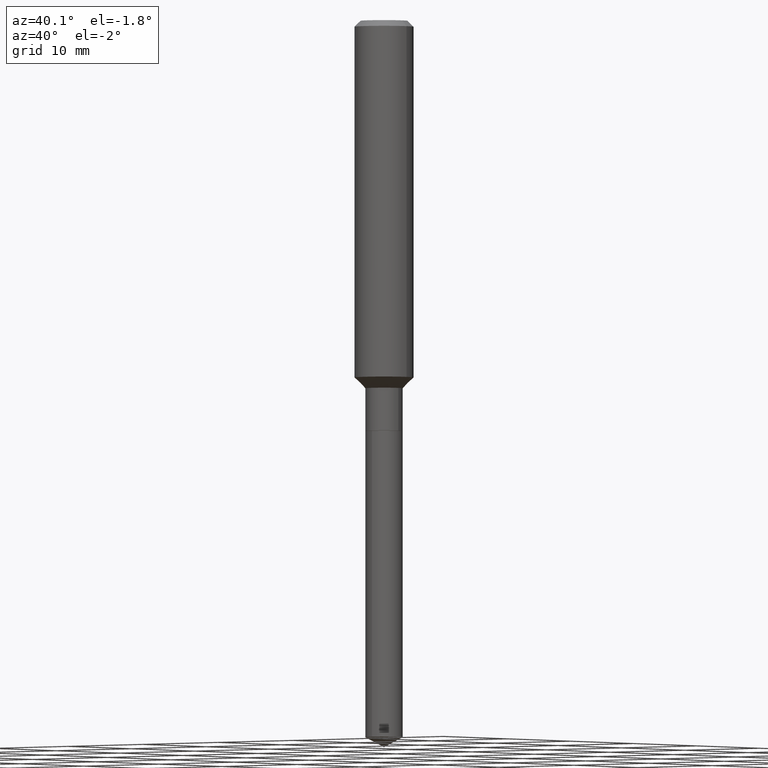
[diagram: clean part render]
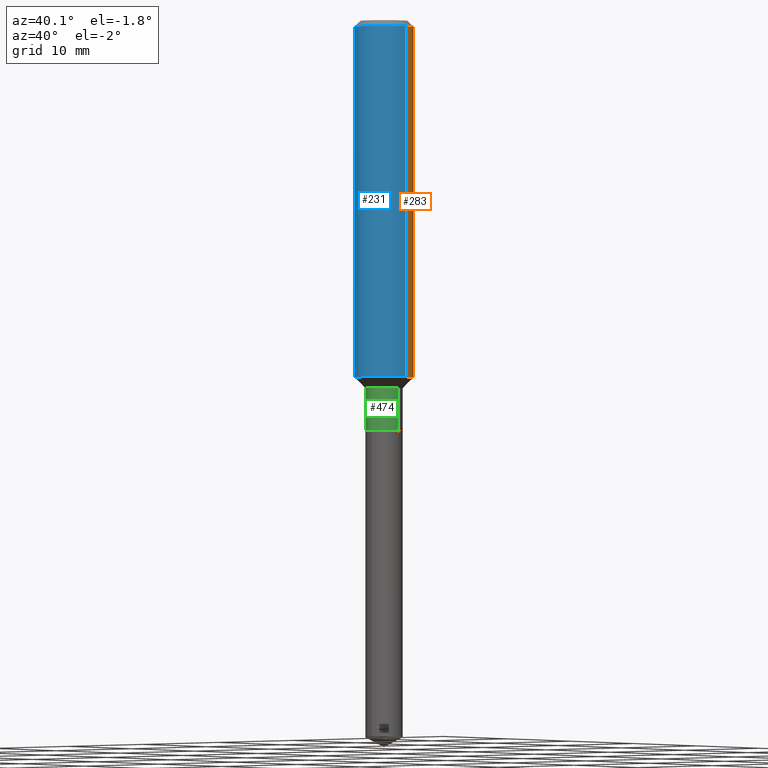
[diagram: same view with three faces highlighted in distinct colors, each labeled with its STEP entity id]
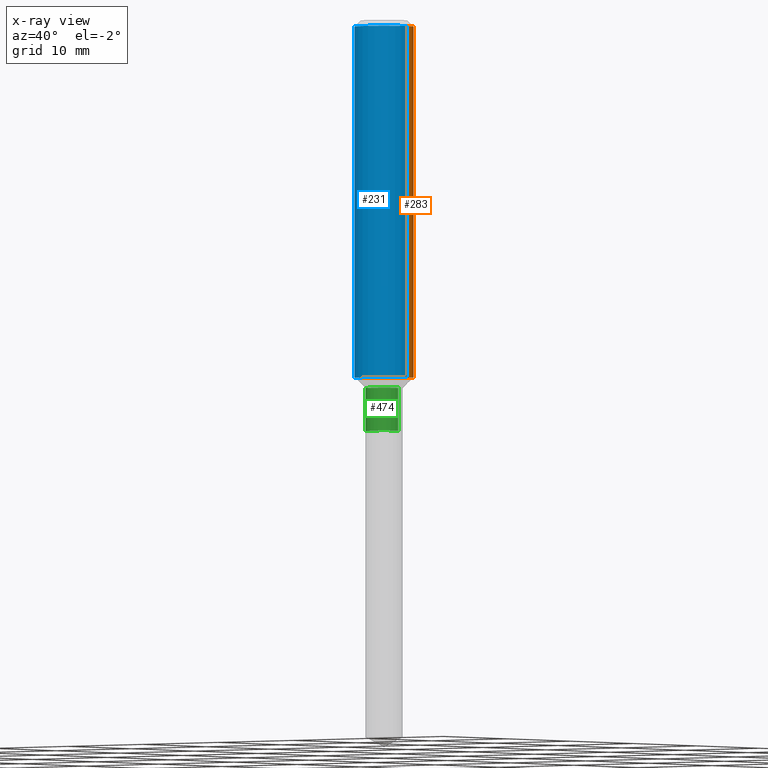
[diagram: x-ray of the same camera — body ghosted, the three highlighted faces saturated]
A machine part, auxiliary view with three faces highlighted in distinct colors.
The next image is the same camera in x-ray (body ghosted, the three faces saturated) — at least one of them is partly hidden behind the body in this view.
Their STEP definitions:

[orange] entity #283 — the highlighted cylindrical surface (edge-blend (fillet) strip) has radius 2.9997 mm, axis along (-0, 0, 1).
#2 = LINE ( 'NONE', #63, #98 ) ;
#3 = VERTEX_POINT ( 'NONE', #489 ) ;
#32 = CYLINDRICAL_SURFACE ( 'NONE', #421, 0.1181000000000000799 ) ;
#34 = CARTESIAN_POINT ( 'NONE',  ( 0.1181000000000000799, -8.246878922347486570E-16, 5.758764772215004644E-30 ) ) ;
#39 = ORIENTED_EDGE ( 'NONE', *, *, #383, .T. ) ;
#63 = CARTESIAN_POINT ( 'NONE',  ( -0.1181000000000000799, 8.391509709326788873E-16, -5.809262341591047988E-30 ) ) ;
#70 = CARTESIAN_POINT ( 'NONE',  ( 3.497998580367219776E-29, -4.994214907081235414E-15, -1.430400000000000116 ) ) ;
#84 = EDGE_CURVE ( 'NONE', #3, #368, #263, .T. ) ;
#98 = VECTOR ( 'NONE', #206, 39.37007874015748143 ) ;
#130 = EDGE_LOOP ( 'NONE', ( #286, #39, #138, #134 ) ) ;
#134 = ORIENTED_EDGE ( 'NONE', *, *, #306, .F. ) ;
#138 = ORIENTED_EDGE ( 'NONE', *, *, #364, .F. ) ;
#163 = DIRECTION ( 'NONE',  ( -2.445468806185136597E-29, 3.491481338843145583E-15, 1.000000000000000000 ) ) ;
#167 = DIRECTION ( 'NONE',  ( -2.445468806185136597E-29, 3.491481338843145583E-15, 1.000000000000000000 ) ) ;
#173 = DIRECTION ( 'NONE',  ( -2.445468806185136877E-29, 3.491481338843145188E-15, 1.000000000000000000 ) ) ;
#177 = AXIS2_PLACEMENT_3D ( 'NONE', #70, #163, #444 ) ;
#201 = CIRCLE ( 'NONE', #224, 0.1180999999999999966 ) ;
#206 = DIRECTION ( 'NONE',  ( -2.445468806185136877E-29, 3.491481338843145188E-15, 1.000000000000000000 ) ) ;
#209 = FACE_OUTER_BOUND ( 'NONE', #130, .T. ) ;
#213 = DIRECTION ( 'NONE',  ( -2.445468806185136597E-29, 3.491481338843145583E-15, 1.000000000000000000 ) ) ;
#215 = VERTEX_POINT ( 'NONE', #367 ) ;
#224 = AXIS2_PLACEMENT_3D ( 'NONE', #478, #167, #239 ) ;
#239 = DIRECTION ( 'NONE',  ( 1.000000000000000000, -6.982962677686266711E-15, 0.000000000000000000 ) ) ;
#263 = CIRCLE ( 'NONE', #177, 0.1181000000000001632 ) ;
#283 = ADVANCED_FACE ( 'NONE', ( #209 ), #32, .T. ) ;
#286 = ORIENTED_EDGE ( 'NONE', *, *, #84, .T. ) ;
#306 = EDGE_CURVE ( 'NONE', #3, #215, #373, .T. ) ;
#334 = CARTESIAN_POINT ( 'NONE',  ( 0.000000000000000000, 0.000000000000000000, 0.000000000000000000 ) ) ;
#364 = EDGE_CURVE ( 'NONE', #215, #441, #201, .T. ) ;
#367 = CARTESIAN_POINT ( 'NONE',  ( 0.1180999999999999966, -9.071566814582237199E-16, -0.02362000000000014435 ) ) ;
#368 = VERTEX_POINT ( 'NONE', #482 ) ;
#373 = LINE ( 'NONE', #34, #395 ) ;
#383 = EDGE_CURVE ( 'NONE', #368, #441, #2, .T. ) ;
#395 = VECTOR ( 'NONE', #173, 39.37007874015748143 ) ;
#421 = AXIS2_PLACEMENT_3D ( 'NONE', #334, #213, #490 ) ;
#441 = VERTEX_POINT ( 'NONE', #470 ) ;
#444 = DIRECTION ( 'NONE',  ( 1.000000000000000000, -6.982962677686270655E-15, 0.000000000000000000 ) ) ;
#470 = CARTESIAN_POINT ( 'NONE',  ( -0.1180999999999999966, -1.699190877219676055E-15, -0.02362000000000014435 ) ) ;
#478 = CARTESIAN_POINT ( 'NONE',  ( 5.776197320209328408E-31, -8.246878922347560526E-17, -0.02362000000000014435 ) ) ;
#482 = CARTESIAN_POINT ( 'NONE',  ( -0.1181000000000001632, -4.155063936148555639E-15, -1.430400000000000116 ) ) ;
#489 = CARTESIAN_POINT ( 'NONE',  ( 0.1181000000000001632, -5.818902799315985254E-15, -1.430400000000000116 ) ) ;
#490 = DIRECTION ( 'NONE',  ( 1.000000000000000000, -6.982962677686266711E-15, 4.876176775795936353E-29 ) ) ;

[blue] entity #231 — the highlighted cylindrical surface (edge-blend (fillet) strip) has radius 2.9997 mm, axis along (-0, 0, 1).
#2 = LINE ( 'NONE', #63, #98 ) ;
#3 = VERTEX_POINT ( 'NONE', #489 ) ;
#27 = EDGE_CURVE ( 'NONE', #441, #215, #427, .T. ) ;
#31 = ORIENTED_EDGE ( 'NONE', *, *, #383, .F. ) ;
#34 = CARTESIAN_POINT ( 'NONE',  ( 0.1181000000000000799, -8.246878922347486570E-16, 5.758764772215004644E-30 ) ) ;
#46 = AXIS2_PLACEMENT_3D ( 'NONE', #352, #311, #468 ) ;
#61 = FACE_OUTER_BOUND ( 'NONE', #333, .T. ) ;
#63 = CARTESIAN_POINT ( 'NONE',  ( -0.1181000000000000799, 8.391509709326788873E-16, -5.809262341591047988E-30 ) ) ;
#96 = ORIENTED_EDGE ( 'NONE', *, *, #306, .T. ) ;
#98 = VECTOR ( 'NONE', #206, 39.37007874015748143 ) ;
#103 = CYLINDRICAL_SURFACE ( 'NONE', #139, 0.1181000000000000799 ) ;
#126 = ORIENTED_EDGE ( 'NONE', *, *, #238, .T. ) ;
#139 = AXIS2_PLACEMENT_3D ( 'NONE', #328, #245, #337 ) ;
#173 = DIRECTION ( 'NONE',  ( -2.445468806185136877E-29, 3.491481338843145188E-15, 1.000000000000000000 ) ) ;
#206 = DIRECTION ( 'NONE',  ( -2.445468806185136877E-29, 3.491481338843145188E-15, 1.000000000000000000 ) ) ;
#215 = VERTEX_POINT ( 'NONE', #367 ) ;
#231 = ADVANCED_FACE ( 'NONE', ( #61 ), #103, .T. ) ;
#238 = EDGE_CURVE ( 'NONE', #368, #3, #440, .T. ) ;
#240 = AXIS2_PLACEMENT_3D ( 'NONE', #363, #284, #442 ) ;
#245 = DIRECTION ( 'NONE',  ( -2.445468806185136597E-29, 3.491481338843145583E-15, 1.000000000000000000 ) ) ;
#258 = ORIENTED_EDGE ( 'NONE', *, *, #27, .F. ) ;
#284 = DIRECTION ( 'NONE',  ( -2.445468806185136597E-29, 3.491481338843145583E-15, 1.000000000000000000 ) ) ;
#306 = EDGE_CURVE ( 'NONE', #3, #215, #373, .T. ) ;
#311 = DIRECTION ( 'NONE',  ( -2.445468806185136597E-29, 3.491481338843145583E-15, 1.000000000000000000 ) ) ;
#328 = CARTESIAN_POINT ( 'NONE',  ( 0.000000000000000000, 0.000000000000000000, 0.000000000000000000 ) ) ;
#333 = EDGE_LOOP ( 'NONE', ( #31, #126, #96, #258 ) ) ;
#337 = DIRECTION ( 'NONE',  ( 1.000000000000000000, -6.982962677686266711E-15, 4.876176775795936353E-29 ) ) ;
#352 = CARTESIAN_POINT ( 'NONE',  ( 5.776197320209328408E-31, -8.246878922347560526E-17, -0.02362000000000014435 ) ) ;
#363 = CARTESIAN_POINT ( 'NONE',  ( 3.497998580367219776E-29, -4.994214907081235414E-15, -1.430400000000000116 ) ) ;
#367 = CARTESIAN_POINT ( 'NONE',  ( 0.1180999999999999966, -9.071566814582237199E-16, -0.02362000000000014435 ) ) ;
#368 = VERTEX_POINT ( 'NONE', #482 ) ;
#373 = LINE ( 'NONE', #34, #395 ) ;
#383 = EDGE_CURVE ( 'NONE', #368, #441, #2, .T. ) ;
#395 = VECTOR ( 'NONE', #173, 39.37007874015748143 ) ;
#427 = CIRCLE ( 'NONE', #46, 0.1180999999999999966 ) ;
#440 = CIRCLE ( 'NONE', #240, 0.1181000000000001632 ) ;
#441 = VERTEX_POINT ( 'NONE', #470 ) ;
#442 = DIRECTION ( 'NONE',  ( 1.000000000000000000, -6.982962677686270655E-15, 0.000000000000000000 ) ) ;
#468 = DIRECTION ( 'NONE',  ( 1.000000000000000000, -6.982962677686266711E-15, 0.000000000000000000 ) ) ;
#470 = CARTESIAN_POINT ( 'NONE',  ( -0.1180999999999999966, -1.699190877219676055E-15, -0.02362000000000014435 ) ) ;
#482 = CARTESIAN_POINT ( 'NONE',  ( -0.1181000000000001632, -4.155063936148555639E-15, -1.430400000000000116 ) ) ;
#489 = CARTESIAN_POINT ( 'NONE',  ( 0.1181000000000001632, -5.818902799315985254E-15, -1.430400000000000116 ) ) ;

[green] entity #474 — the highlighted cylindrical surface (edge-blend (fillet) strip) has radius 1.8999 mm, axis along (-0, 0, 1).
#12 = CARTESIAN_POINT ( 'NONE',  ( -0.07479999999999999150, -4.913304607510389243E-15, -1.473700000000000232 ) ) ;
#19 = DIRECTION ( 'NONE',  ( -2.445468806185136877E-29, 3.491481338843145188E-15, 1.000000000000000000 ) ) ;
#29 = ORIENTED_EDGE ( 'NONE', *, *, #80, .F. ) ;
#33 = ORIENTED_EDGE ( 'NONE', *, *, #419, .T. ) ;
#40 = CARTESIAN_POINT ( 'NONE',  ( 4.023285279935787629E-29, -5.744185098664743323E-15, -1.645200000000000218 ) ) ;
#42 = CARTESIAN_POINT ( 'NONE',  ( 0.07480000000000000537, -6.266510706955676124E-15, -1.645200000000000218 ) ) ;
#60 = AXIS2_PLACEMENT_3D ( 'NONE', #185, #146, #465 ) ;
#64 = VERTEX_POINT ( 'NONE', #464 ) ;
#67 = ORIENTED_EDGE ( 'NONE', *, *, #75, .T. ) ;
#75 = EDGE_CURVE ( 'NONE', #64, #416, #380, .T. ) ;
#80 = EDGE_CURVE ( 'NONE', #64, #318, #467, .T. ) ;
#101 = DIRECTION ( 'NONE',  ( 1.000000000000000000, -6.982962677686261977E-15, 0.000000000000000000 ) ) ;
#105 = VECTOR ( 'NONE', #229, 39.37007874015748143 ) ;
#106 = ORIENTED_EDGE ( 'NONE', *, *, #360, .F. ) ;
#119 = DIRECTION ( 'NONE',  ( -2.445468806185136597E-29, 3.491481338843145583E-15, 1.000000000000000000 ) ) ;
#146 = DIRECTION ( 'NONE',  ( -2.445468806185136597E-29, 3.491481338843145583E-15, 1.000000000000000000 ) ) ;
#151 = CARTESIAN_POINT ( 'NONE',  ( 0.07479999999999999150, -5.223256082909327018E-16, 3.647380228295360164E-30 ) ) ;
#153 = VECTOR ( 'NONE', #19, 39.37007874015748143 ) ;
#156 = LINE ( 'NONE', #151, #153 ) ;
#168 = DIRECTION ( 'NONE',  ( 1.000000000000000000, -6.982962677686266711E-15, 4.876176775795936353E-29 ) ) ;
#172 = EDGE_LOOP ( 'NONE', ( #29, #67, #33, #106 ) ) ;
#185 = CARTESIAN_POINT ( 'NONE',  ( 3.603887379675036317E-29, -5.145396049053143934E-15, -1.473700000000000232 ) ) ;
#188 = CARTESIAN_POINT ( 'NONE',  ( -0.07479999999999999150, 5.314859663485548786E-16, -3.679363447510669380E-30 ) ) ;
#219 = DIRECTION ( 'NONE',  ( -2.445468806185136597E-29, 3.491481338843145583E-15, 1.000000000000000000 ) ) ;
#229 = DIRECTION ( 'NONE',  ( -2.445468806185136877E-29, 3.491481338843145188E-15, 1.000000000000000000 ) ) ;
#230 = AXIS2_PLACEMENT_3D ( 'NONE', #40, #119, #101 ) ;
#241 = CIRCLE ( 'NONE', #60, 0.07479999999999999150 ) ;
#269 = CARTESIAN_POINT ( 'NONE',  ( 0.000000000000000000, 0.000000000000000000, 0.000000000000000000 ) ) ;
#316 = AXIS2_PLACEMENT_3D ( 'NONE', #269, #219, #168 ) ;
#318 = VERTEX_POINT ( 'NONE', #12 ) ;
#360 = EDGE_CURVE ( 'NONE', #318, #411, #241, .T. ) ;
#380 = CIRCLE ( 'NONE', #230, 0.07480000000000000537 ) ;
#387 = CARTESIAN_POINT ( 'NONE',  ( 0.07479999999999999150, -5.667721657344076734E-15, -1.473700000000000232 ) ) ;
#391 = CYLINDRICAL_SURFACE ( 'NONE', #316, 0.07479999999999999150 ) ;
#411 = VERTEX_POINT ( 'NONE', #387 ) ;
#416 = VERTEX_POINT ( 'NONE', #42 ) ;
#419 = EDGE_CURVE ( 'NONE', #416, #411, #156, .T. ) ;
#464 = CARTESIAN_POINT ( 'NONE',  ( -0.07480000000000000537, -4.913304607510389243E-15, -1.645200000000000218 ) ) ;
#465 = DIRECTION ( 'NONE',  ( 1.000000000000000000, -6.982962677686262766E-15, 0.000000000000000000 ) ) ;
#466 = FACE_OUTER_BOUND ( 'NONE', #172, .T. ) ;
#467 = LINE ( 'NONE', #188, #105 ) ;
#474 = ADVANCED_FACE ( 'NONE', ( #466 ), #391, .T. ) ;